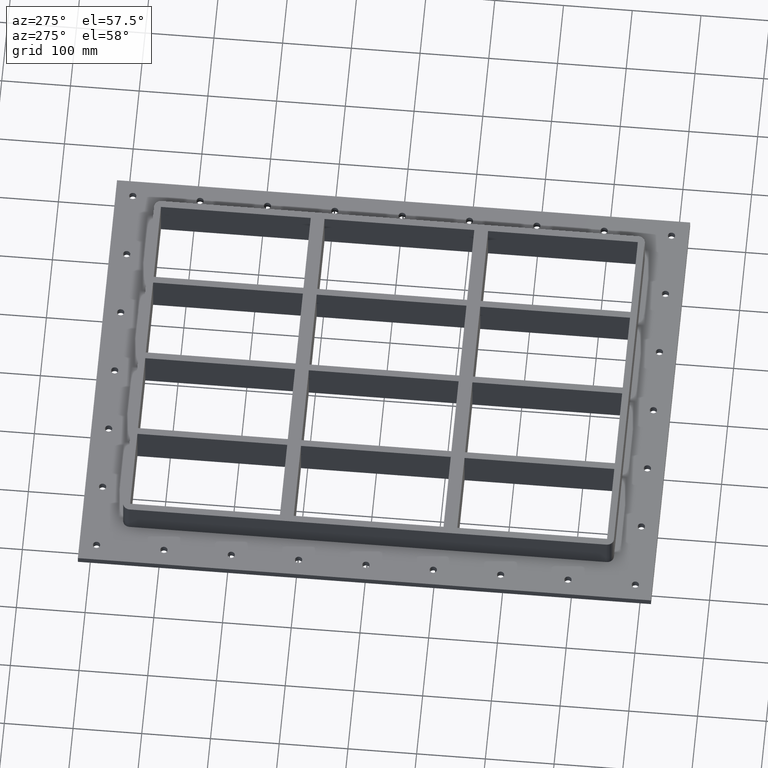
[diagram: clean part render]
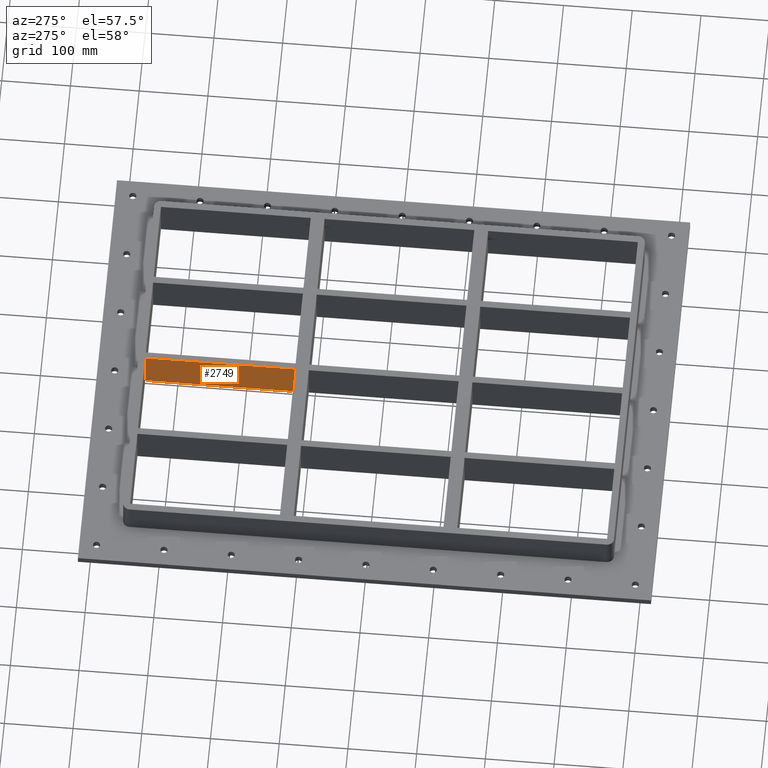
[diagram: same view with one face highlighted and labeled with its STEP entity id]
A machine part, auxiliary view. The second image highlights one B-rep face of the part: STEP entity #2749.
In plain terms, the highlighted planar face has unit normal (1, 0, 0).
Its self-contained STEP definition (entity closure, byte-faithful):
#1792=CARTESIAN_POINT('',(-5.000000000000094,129.00000000000011,-30.0));
#1793=VERTEX_POINT('',#1792);
#1800=CARTESIAN_POINT('',(-5.00000000000013,347.00000000000017,-30.0));
#1801=VERTEX_POINT('',#1800);
#1802=CARTESIAN_POINT('',(-5.000000000000095,129.00000000000014,-30.0));
#1803=DIRECTION('',(0.0,1.0,0.0));
#1804=VECTOR('',#1803,218.00000000000003);
#1805=LINE('',#1802,#1804);
#1806=EDGE_CURVE('',#1793,#1801,#1805,.T.);
#2709=CARTESIAN_POINT('',(-5.000000000000094,129.00000000000011,30.0));
#2710=VERTEX_POINT('',#2709);
#2717=CARTESIAN_POINT('',(-5.000000000000094,129.00000000000011,30.0));
#2718=DIRECTION('',(0.0,0.0,-1.0));
#2719=VECTOR('',#2718,60.0);
#2720=LINE('',#2717,#2719);
#2721=EDGE_CURVE('',#2710,#1793,#2720,.T.);
#2726=CARTESIAN_POINT('',(-5.00000000000013,347.00000000000017,30.0));
#2727=DIRECTION('',(1.0,0.0,0.0));
#2728=DIRECTION('',(0.0,-1.0,0.0));
#2729=AXIS2_PLACEMENT_3D('',#2726,#2727,#2728);
#2730=PLANE('',#2729);
#2731=ORIENTED_EDGE('',*,*,#1806,.F.);
#2732=ORIENTED_EDGE('',*,*,#2721,.F.);
#2733=CARTESIAN_POINT('',(-5.00000000000013,347.00000000000017,30.0));
#2734=VERTEX_POINT('',#2733);
#2735=CARTESIAN_POINT('',(-5.000000000000131,347.00000000000017,30.0));
#2736=DIRECTION('',(0.0,-1.0,0.0));
#2737=VECTOR('',#2736,218.00000000000003);
#2738=LINE('',#2735,#2737);
#2739=EDGE_CURVE('',#2734,#2710,#2738,.T.);
#2740=ORIENTED_EDGE('',*,*,#2739,.F.);
#2741=CARTESIAN_POINT('',(-5.00000000000013,347.00000000000017,30.0));
#2742=DIRECTION('',(0.0,0.0,-1.0));
#2743=VECTOR('',#2742,60.0);
#2744=LINE('',#2741,#2743);
#2745=EDGE_CURVE('',#2734,#1801,#2744,.T.);
#2746=ORIENTED_EDGE('',*,*,#2745,.T.);
#2747=EDGE_LOOP('',(#2731,#2732,#2740,#2746));
#2748=FACE_OUTER_BOUND('',#2747,.T.);
#2749=ADVANCED_FACE('',(#2748),#2730,.F.);